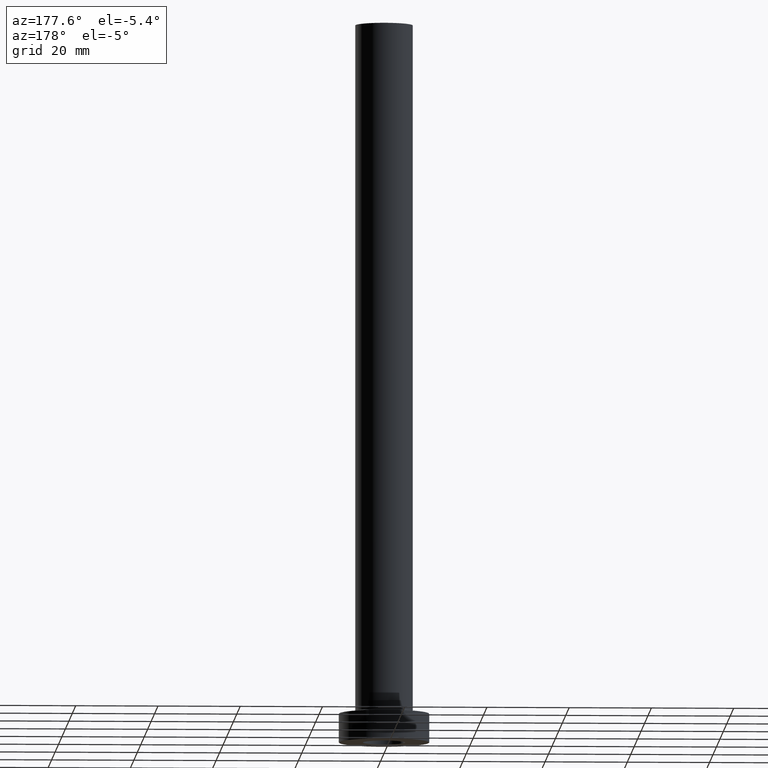
[diagram: clean part render]
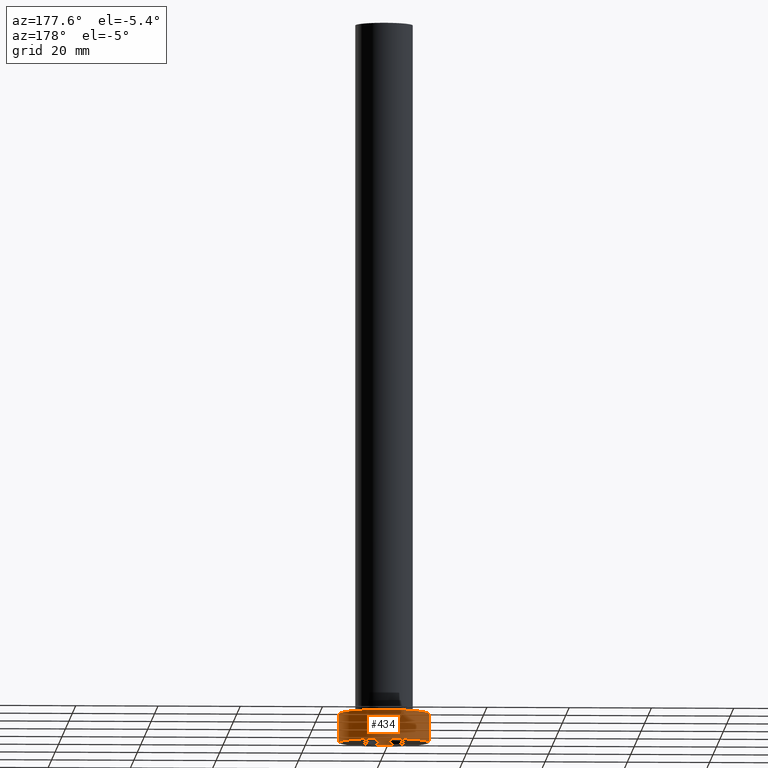
[diagram: same view with one face highlighted and labeled with its STEP entity id]
A machine part, auxiliary view. The second image highlights one B-rep face of the part: STEP entity #434.
In plain terms, the highlighted cylindrical surface (partial cylindrical patch) has radius 11 mm, axis along (-0, -0, -1).
Its self-contained STEP definition (entity closure, byte-faithful):
#2 = LINE ( 'NONE', #104, #370 ) ;
#14 = CARTESIAN_POINT ( 'NONE',  ( 11.00000000000000000, 1.347111479062088405E-15, 0.000000000000000000 ) ) ;
#22 = DIRECTION ( 'NONE',  ( 0.000000000000000000, 0.000000000000000000, 1.000000000000000000 ) ) ;
#28 = LINE ( 'NONE', #32, #143 ) ;
#32 = CARTESIAN_POINT ( 'NONE',  ( -11.00000000000000000, 0.000000000000000000, 7.000000000000000000 ) ) ;
#41 = EDGE_CURVE ( 'NONE', #129, #152, #2, .T. ) ;
#50 = EDGE_CURVE ( 'NONE', #129, #68, #304, .T. ) ;
#68 = VERTEX_POINT ( 'NONE', #399 ) ;
#71 = VERTEX_POINT ( 'NONE', #321 ) ;
#72 = DIRECTION ( 'NONE',  ( 1.000000000000000000, 0.000000000000000000, 0.000000000000000000 ) ) ;
#74 = DIRECTION ( 'NONE',  ( 0.000000000000000000, 0.000000000000000000, 1.000000000000000000 ) ) ;
#95 = CARTESIAN_POINT ( 'NONE',  ( 0.000000000000000000, 0.000000000000000000, 7.000000000000000000 ) ) ;
#104 = CARTESIAN_POINT ( 'NONE',  ( 11.00000000000000000, 1.347111479062088405E-15, 7.000000000000000000 ) ) ;
#117 = CYLINDRICAL_SURFACE ( 'NONE', #403, 11.00000000000000000 ) ;
#124 = AXIS2_PLACEMENT_3D ( 'NONE', #95, #74, #72 ) ;
#129 = VERTEX_POINT ( 'NONE', #257 ) ;
#131 = ORIENTED_EDGE ( 'NONE', *, *, #50, .F. ) ;
#143 = VECTOR ( 'NONE', #235, 1000.000000000000000 ) ;
#150 = DIRECTION ( 'NONE',  ( -1.000000000000000000, 0.000000000000000000, 0.000000000000000000 ) ) ;
#152 = VERTEX_POINT ( 'NONE', #14 ) ;
#194 = FACE_OUTER_BOUND ( 'NONE', #286, .T. ) ;
#207 = ORIENTED_EDGE ( 'NONE', *, *, #41, .T. ) ;
#230 = CARTESIAN_POINT ( 'NONE',  ( 0.000000000000000000, 0.000000000000000000, 0.000000000000000000 ) ) ;
#235 = DIRECTION ( 'NONE',  ( -0.000000000000000000, -0.000000000000000000, -1.000000000000000000 ) ) ;
#257 = CARTESIAN_POINT ( 'NONE',  ( 11.00000000000000000, 1.347111479062088405E-15, 7.000000000000000000 ) ) ;
#283 = ORIENTED_EDGE ( 'NONE', *, *, #314, .F. ) ;
#286 = EDGE_LOOP ( 'NONE', ( #131, #207, #390, #283 ) ) ;
#304 = CIRCLE ( 'NONE', #124, 11.00000000000000000 ) ;
#308 = DIRECTION ( 'NONE',  ( 1.000000000000000000, 0.000000000000000000, 0.000000000000000000 ) ) ;
#314 = EDGE_CURVE ( 'NONE', #68, #71, #28, .T. ) ;
#321 = CARTESIAN_POINT ( 'NONE',  ( -11.00000000000000000, 0.000000000000000000, 0.000000000000000000 ) ) ;
#325 = CIRCLE ( 'NONE', #332, 11.00000000000000000 ) ;
#326 = DIRECTION ( 'NONE',  ( -0.000000000000000000, -0.000000000000000000, -1.000000000000000000 ) ) ;
#332 = AXIS2_PLACEMENT_3D ( 'NONE', #230, #22, #308 ) ;
#348 = CARTESIAN_POINT ( 'NONE',  ( 0.000000000000000000, 0.000000000000000000, 7.000000000000000000 ) ) ;
#370 = VECTOR ( 'NONE', #326, 1000.000000000000000 ) ;
#390 = ORIENTED_EDGE ( 'NONE', *, *, #431, .T. ) ;
#399 = CARTESIAN_POINT ( 'NONE',  ( -11.00000000000000000, 0.000000000000000000, 7.000000000000000000 ) ) ;
#403 = AXIS2_PLACEMENT_3D ( 'NONE', #348, #453, #150 ) ;
#431 = EDGE_CURVE ( 'NONE', #152, #71, #325, .T. ) ;
#434 = ADVANCED_FACE ( 'NONE', ( #194 ), #117, .T. ) ;
#453 = DIRECTION ( 'NONE',  ( -0.000000000000000000, -0.000000000000000000, -1.000000000000000000 ) ) ;